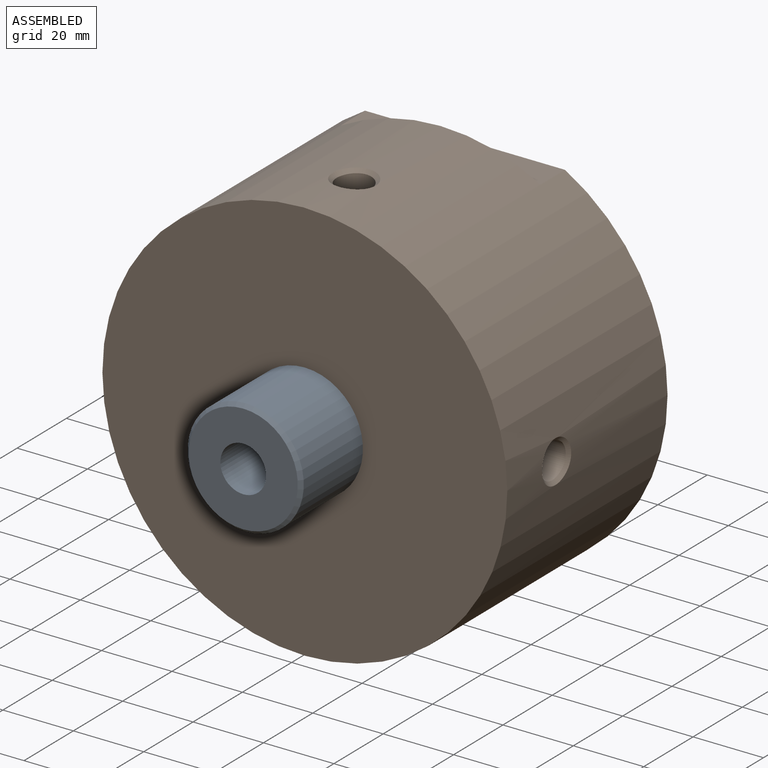
[diagram: assembled view]
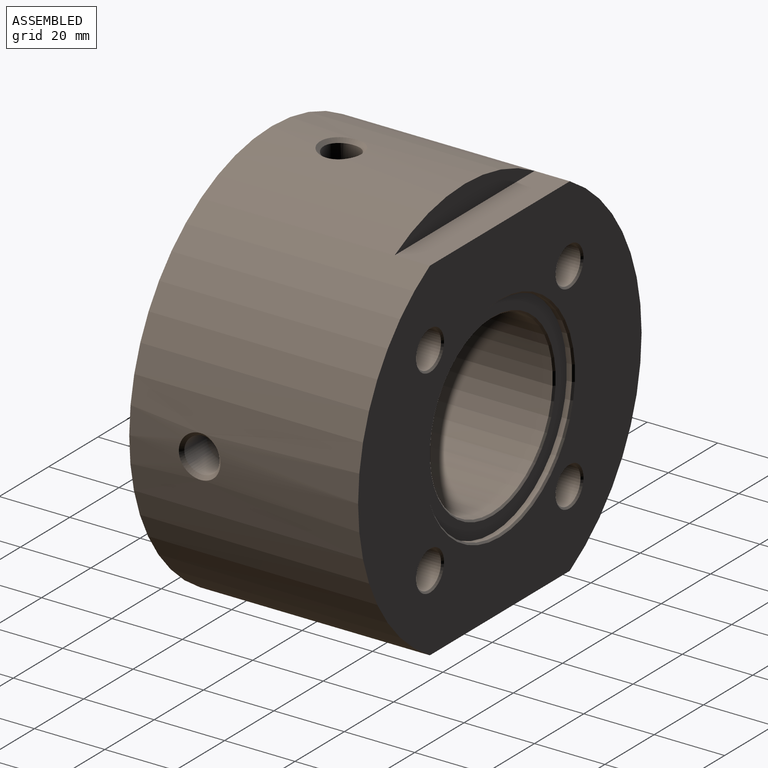
[diagram: assembled view, second angle]
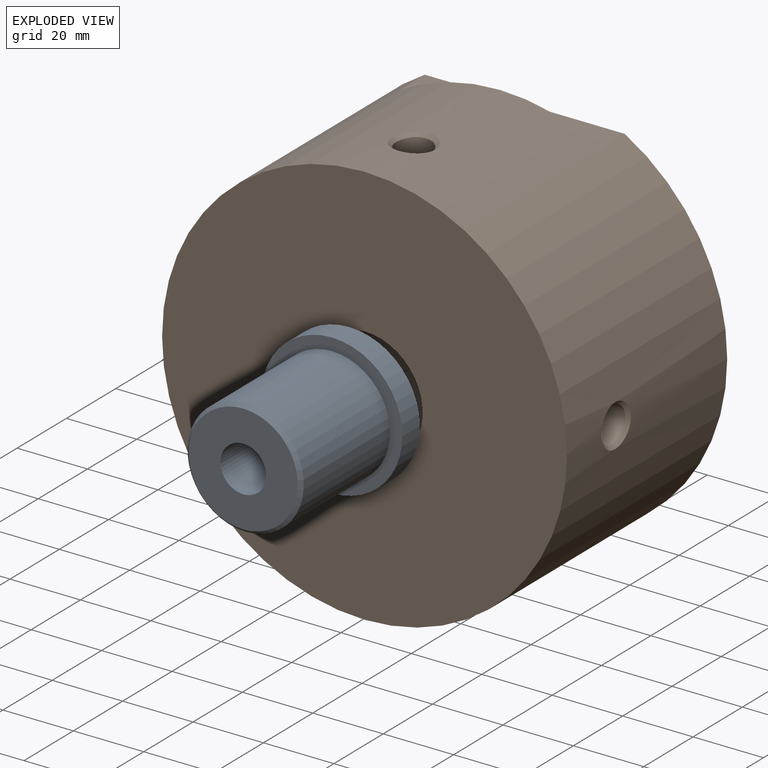
[diagram: exploded view]
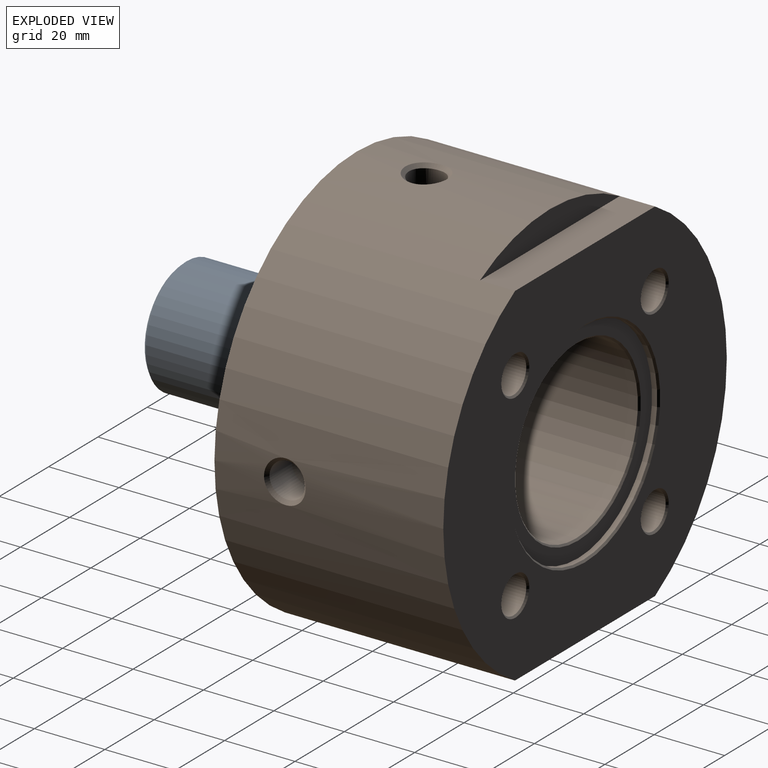
[diagram: exploded view, second angle]
ASSEMBLY  parts=2 mates=2
PART A: 10 faces, bbox 40x43x40 mm
  f0: cylinder r=6.5mm len=33mm, axis (0,1,0), area 1347.7mm2, adj f1,f7
  f1: plane 31x31mm, normal (0,1,0), area 622mm2, adj f0,f6
  f2: cylinder r=16.5mm len=35mm, axis (0,1,0), area 3628.5mm2, adj f3,f6
  f3: plane 40x40mm, normal (0,1,0), area 401.3mm2, adj f2,f5
  f4: plane 40x40mm, normal (0,-1,0), area 725.7mm2, adj f5,f9
  f5: cylinder r=20mm len=40mm, axis (0,1,0), area 879.6mm2, adj f3,f4
  f6: cone r=15.5mm half-angle=45deg, axis (0,-1,0), area 142.2mm2, adj f1,f2
  f7: plane 25x25mm, normal (0,-1,0), area 358.1mm2, adj f0,f8
  f8: cylinder r=12.5mm len=25mm, axis (0,-1,0), area 746.1mm2, adj f7,f9
  f9: cone r=12.5mm half-angle=45deg, axis (0,-1,0), area 56.6mm2, adj f4,f8
PART B: 40 faces, bbox 115x65x115 mm
  f0: cylinder r=57.5mm len=115mm, axis (0,1,0), area 21841.5mm2, adj f2,f3,f5,f6,f7,f8,f27,f30
  f1: cylinder r=25mm len=50mm, axis (0,1,0), area 6990mm2, adj f4,f23
  f2: plane 115x100mm, normal (0,1,0), area 6487.5mm2, adj f0,f6,f8,f17,f18,f19,f20,f24
  f3: plane 115x115mm, normal (0,-1,0), area 9531.6mm2, adj f0,f39
  f4: plane 50x50mm, normal (0,1,0), area 706.9mm2, adj f1,f38
  f5: plane 56.79x7.5mm, normal (0,1,0), area 287.9mm2, adj f0,f6
  f6: plane 56.79x10mm, normal (0,0,1), area 567.9mm2, adj f0,f2,f5
  f7: plane 56.79x7.5mm, normal (0,1,0), area 287.9mm2, adj f0,f8
  f8: plane 56.79x10mm, normal (0,0,-1), area 567.9mm2, adj f0,f2,f7
  f9: cone r=0mm half-angle=59deg, axis (0,1,0), area 97.2mm2, adj f10
  f10: cylinder r=5.15mm len=28.88mm, axis (0,1,0), area 934.3mm2, adj f9,f19
  f11: cone r=0mm half-angle=59deg, axis (0,1,0), area 97.2mm2, adj f12
  f12: cylinder r=5.15mm len=28.88mm, axis (0,1,0), area 934.3mm2, adj f11,f18
  f13: cone r=0mm half-angle=59deg, axis (0,1,0), area 97.2mm2, adj f14
  f14: cylinder r=5.15mm len=28.88mm, axis (0,1,0), area 934.3mm2, adj f13,f17
  f15: cone r=0mm half-angle=59deg, axis (0,1,0), area 97.2mm2, adj f16
  f16: cylinder r=5.15mm len=28.88mm, axis (0,1,0), area 934.3mm2, adj f15,f20
  f17: cone r=5.15mm half-angle=45deg, axis (0,1,0), area 24mm2, adj f2,f14
  f18: cone r=5.15mm half-angle=45deg, axis (0,1,0), area 24mm2, adj f2,f12
  f19: cone r=5.15mm half-angle=45deg, axis (0,1,0), area 24mm2, adj f2,f10
  f20: cone r=5.15mm half-angle=45deg, axis (0,1,0), area 24mm2, adj f2,f16
  f21: plane 60x60mm, normal (0,1,0), area 784.6mm2, adj f22,f23
  f22: cylinder r=30mm len=60mm, axis (0,1,0), area 282.7mm2, adj f21,f24
  f23: cone r=25.5mm half-angle=45deg, axis (0,1,0), area 112.2mm2, adj f1,f21
  f24: cone r=30mm half-angle=45deg, axis (0,1,0), area 134.4mm2, adj f2,f22
  f25: cylinder r=5mm len=10mm, axis (0,0,1), area 277.7mm2, adj f26,f27
  f26: cone r=0mm half-angle=59deg, axis (0,0,1), area 91.6mm2, adj f25
  f27: bspline ~12.21x12mm, area 50.4mm2, adj f0,f25
  f28: cylinder r=5mm len=10mm, axis (0,0,-1), area 275.6mm2, adj f29,f30
  f29: cone r=0mm half-angle=59deg, axis (0,0,-1), area 91.6mm2, adj f28
  f30: bspline ~12.02x11.83mm, area 45.8mm2, adj f0,f28
  f31: cylinder r=5mm len=10mm, axis (1,0,0), area 275.6mm2, adj f32,f33
  f32: cone r=0mm half-angle=59deg, axis (1,0,0), area 91.6mm2, adj f31
  f33: bspline ~12.02x11.83mm, area 45.8mm2, adj f0,f31
  f34: cylinder r=5mm len=10mm, axis (-1,0,0), area 275.6mm2, adj f35,f36
  f35: cone r=0mm half-angle=59deg, axis (-1,0,0), area 91.6mm2, adj f34
  f36: bspline ~12.02x11.83mm, area 45.8mm2, adj f0,f34
  f37: plane 40x40mm, normal (0,1,0), area 401.3mm2, adj f38,f39
  f38: cylinder r=20mm len=40mm, axis (0,1,0), area 879.6mm2, adj f4,f37
  f39: cylinder r=16.5mm len=33mm, axis (0,1,0), area 1140.4mm2, adj f3,f37
PLACE A rot(axis=(0,0,1),180deg) t=(63.85,74.87,-10.15)mm
PLACE B t=(63.85,164.87,-10.15)mm
MATE planar B.f38 <-> A.f5  axis (0,1,0) through (63.85,110.87,-10.15)mm
MATE cylindrical A.f2 <-> B.f39  axis (0,-1,0) through (63.85,93.37,-10.15)mm
